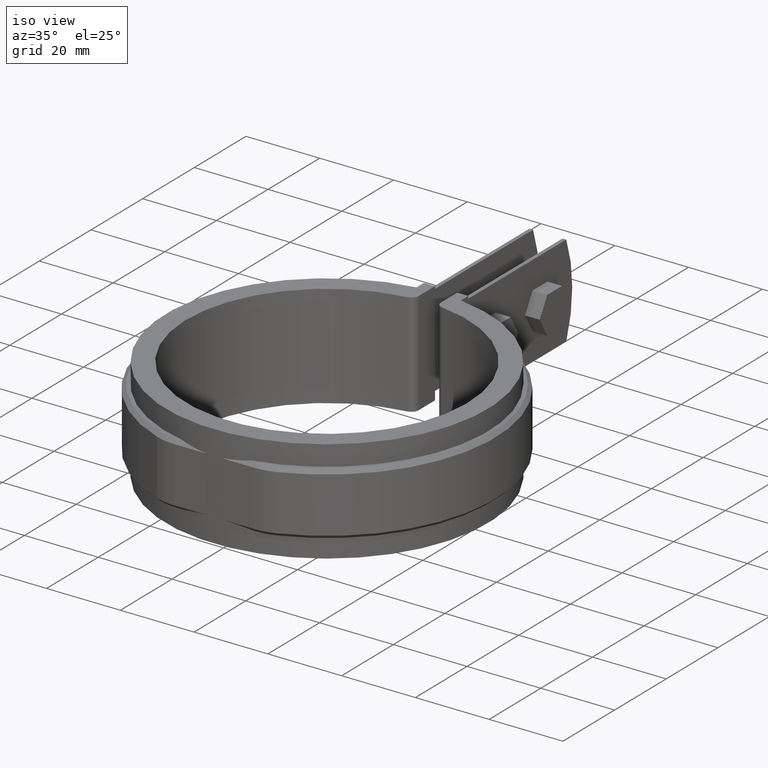
[diagram: clean part render]
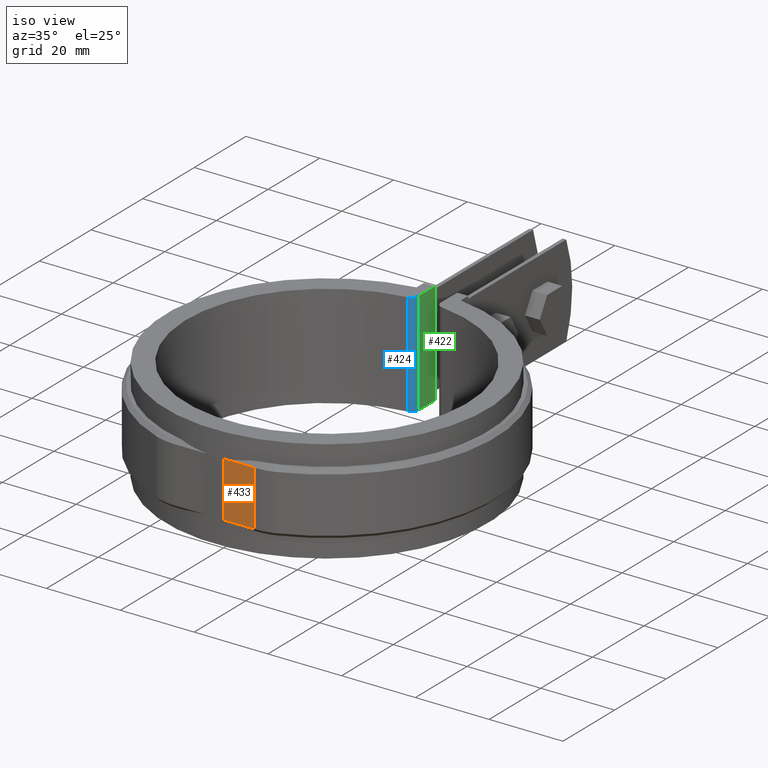
[diagram: same view with three faces highlighted in distinct colors, each labeled with its STEP entity id]
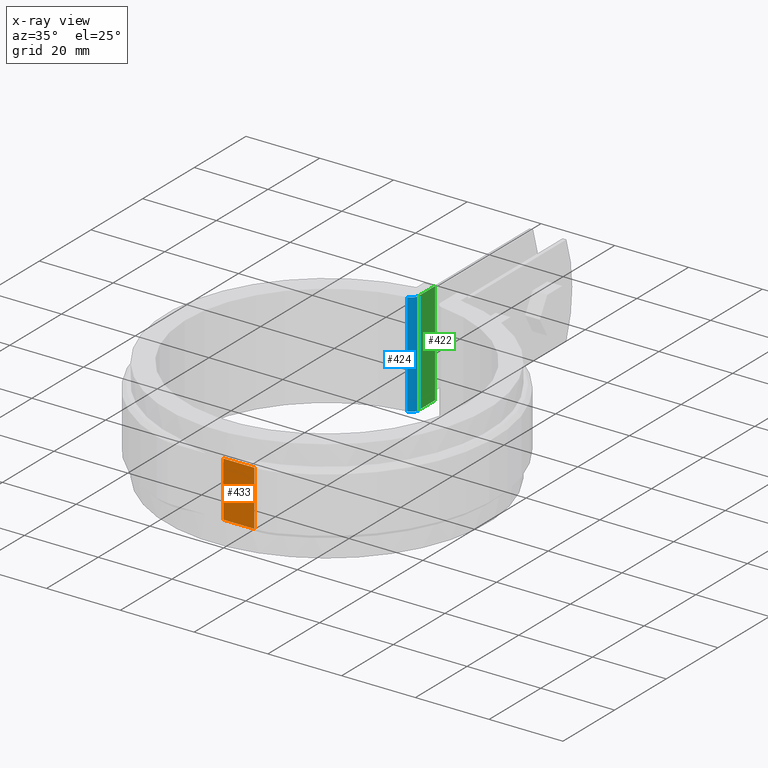
[diagram: x-ray of the same camera — body ghosted, the three highlighted faces saturated]
A machine part, iso view with three faces highlighted in distinct colors.
The next image is the same camera in x-ray (body ghosted, the three faces saturated) — at least one of them is partly hidden behind the body in this view.
Their STEP definitions:

[orange] entity #433 — the highlighted planar face has unit normal (0, 1, 0).
#433 = ADVANCED_FACE( '', ( #760 ), #761, .F. );
#760 = FACE_OUTER_BOUND( '', #1708, .T. );
#761 = PLANE( '', #1709 );
#1708 = EDGE_LOOP( '', ( #3418, #3419, #3420, #3421 ) );
#1709 = AXIS2_PLACEMENT_3D( '', #3422, #3423, #3424 );
#3418 = ORIENTED_EDGE( '', *, *, #4289, .F. );
#3419 = ORIENTED_EDGE( '', *, *, #4198, .T. );
#3420 = ORIENTED_EDGE( '', *, *, #4237, .T. );
#3421 = ORIENTED_EDGE( '', *, *, #4243, .T. );
#3422 = CARTESIAN_POINT( '', ( 10.8903627120496, -43.6500000000000, 8.50000000000000 ) );
#3423 = DIRECTION( '', ( 2.77555756156289E-017, 1.00000000000000, 0.000000000000000 ) );
#3424 = DIRECTION( '', ( 1.00000000000000, -2.77555756156289E-017, 0.000000000000000 ) );
#4198 = EDGE_CURVE( '', #4871, #4878, #4880, .T. );
#4237 = EDGE_CURVE( '', #4878, #4944, #4945, .T. );
#4243 = EDGE_CURVE( '', #4944, #4866, #4953, .T. );
#4289 = EDGE_CURVE( '', #4871, #4866, #5013, .T. );
#4866 = VERTEX_POINT( '', #7372 );
#4871 = VERTEX_POINT( '', #7378 );
#4878 = VERTEX_POINT( '', #7387 );
#4880 = LINE( '', #7390, #7391 );
#4944 = VERTEX_POINT( '', #7481 );
#4945 = LINE( '', #7482, #7483 );
#4953 = LINE( '', #7519, #7520 );
#5013 = LINE( '', #7656, #7657 );
#7372 = CARTESIAN_POINT( '', ( 10.8903627120496, -43.6500000000000, -7.50000000000000 ) );
#7378 = CARTESIAN_POINT( '', ( 10.8903627120496, -43.6500000000000, 7.50000000000000 ) );
#7387 = CARTESIAN_POINT( '', ( 2.50000000000000, -43.6500000000000, 7.49999999999999 ) );
#7390 = CARTESIAN_POINT( '', ( 2.50000000000000, -43.6500000000000, 7.50000000000000 ) );
#7391 = VECTOR( '', #8381, 1000.00000000000 );
#7481 = CARTESIAN_POINT( '', ( 2.50000000000000, -43.6500000000000, -7.50000000000000 ) );
#7482 = CARTESIAN_POINT( '', ( 2.50000000000000, -43.6500000000000, 8.50000000000000 ) );
#7483 = VECTOR( '', #8450, 1000.00000000000 );
#7519 = CARTESIAN_POINT( '', ( 10.8903627120496, -43.6500000000000, -7.50000000000000 ) );
#7520 = VECTOR( '', #8453, 1000.00000000000 );
#7656 = CARTESIAN_POINT( '', ( 10.8903627120496, -43.6500000000000, 8.50000000000000 ) );
#7657 = VECTOR( '', #8529, 1000.00000000000 );
#8381 = DIRECTION( '', ( -1.00000000000000, 2.77555756156289E-017, 0.000000000000000 ) );
#8450 = DIRECTION( '', ( 0.000000000000000, 0.000000000000000, -1.00000000000000 ) );
#8453 = DIRECTION( '', ( 1.00000000000000, -2.77555756156289E-017, 0.000000000000000 ) );
#8529 = DIRECTION( '', ( 0.000000000000000, 0.000000000000000, -1.00000000000000 ) );

[blue] entity #424 — the highlighted cylindrical surface (edge-blend (fillet) strip) has radius 2 mm, axis along (0, 0, -1).
#424 = ADVANCED_FACE( '', ( #742 ), #743, .T. );
#742 = FACE_OUTER_BOUND( '', #1690, .T. );
#743 = CYLINDRICAL_SURFACE( '', #1691, 2.00000000000000 );
#1690 = EDGE_LOOP( '', ( #3335, #3336, #3337, #3338 ) );
#1691 = AXIS2_PLACEMENT_3D( '', #3339, #3340, #3341 );
#3335 = ORIENTED_EDGE( '', *, *, #4280, .F. );
#3336 = ORIENTED_EDGE( '', *, *, #4276, .F. );
#3337 = ORIENTED_EDGE( '', *, *, #4249, .F. );
#3338 = ORIENTED_EDGE( '', *, *, #4117, .F. );
#3339 = CARTESIAN_POINT( '', ( -5.00000000000002, 39.8374509726714, -14.0000000000000 ) );
#3340 = DIRECTION( '', ( 0.000000000000000, 0.000000000000000, -1.00000000000000 ) );
#3341 = DIRECTION( '', ( 1.00000000000000, 0.000000000000000, 0.000000000000000 ) );
#4117 = EDGE_CURVE( '', #4735, #4737, #4738, .T. );
#4249 = EDGE_CURVE( '', #4737, #4960, #4961, .F. );
#4276 = EDGE_CURVE( '', #4960, #4998, #4999, .F. );
#4280 = EDGE_CURVE( '', #4998, #4735, #5004, .T. );
#4735 = VERTEX_POINT( '', #6685 );
#4737 = VERTEX_POINT( '', #6687 );
#4738 = LINE( '', #6688, #6689 );
#4960 = VERTEX_POINT( '', #7530 );
#4961 = CIRCLE( '', #7531, 2.00000000000000 );
#4998 = VERTEX_POINT( '', #7633 );
#4999 = LINE( '', #7634, #7635 );
#5004 = CIRCLE( '', #7643, 2.00000000000000 );
#6685 = CARTESIAN_POINT( '', ( -4.75093399750936, 37.8530200400352, -14.0000000000000 ) );
#6687 = CARTESIAN_POINT( '', ( -4.75093399750936, 37.8530200400352, 14.0000000000000 ) );
#6688 = CARTESIAN_POINT( '', ( -4.75093399750936, 37.8530200400352, -14.0000000000000 ) );
#6689 = VECTOR( '', #8298, 1000.00000000000 );
#7530 = CARTESIAN_POINT( '', ( -3.00000000000002, 39.8374509726714, 14.0000000000000 ) );
#7531 = AXIS2_PLACEMENT_3D( '', #8463, #8464, #8465 );
#7633 = CARTESIAN_POINT( '', ( -3.00000000000002, 39.8374509726714, -14.0000000000000 ) );
#7634 = CARTESIAN_POINT( '', ( -3.00000000000002, 39.8374509726714, -14.0000000000000 ) );
#7635 = VECTOR( '', #8506, 1000.00000000000 );
#7643 = AXIS2_PLACEMENT_3D( '', #8510, #8511, #8512 );
#8298 = DIRECTION( '', ( 0.000000000000000, 0.000000000000000, 1.00000000000000 ) );
#8463 = CARTESIAN_POINT( '', ( -5.00000000000002, 39.8374509726714, 14.0000000000000 ) );
#8464 = DIRECTION( '', ( 0.000000000000000, 0.000000000000000, -1.00000000000000 ) );
#8465 = DIRECTION( '', ( -1.00000000000000, 0.000000000000000, 0.000000000000000 ) );
#8506 = DIRECTION( '', ( 0.000000000000000, 0.000000000000000, 1.00000000000000 ) );
#8510 = CARTESIAN_POINT( '', ( -5.00000000000002, 39.8374509726714, -14.0000000000000 ) );
#8511 = DIRECTION( '', ( 0.000000000000000, 0.000000000000000, -1.00000000000000 ) );
#8512 = DIRECTION( '', ( -1.00000000000000, 0.000000000000000, 0.000000000000000 ) );

[green] entity #422 — the highlighted planar face has unit normal (1, -0, 0).
#422 = ADVANCED_FACE( '', ( #738 ), #739, .T. );
#738 = FACE_OUTER_BOUND( '', #1686, .T. );
#739 = PLANE( '', #1687 );
#1686 = EDGE_LOOP( '', ( #3321, #3322, #3323, #3324 ) );
#1687 = AXIS2_PLACEMENT_3D( '', #3325, #3326, #3327 );
#3321 = ORIENTED_EDGE( '', *, *, #4250, .F. );
#3322 = ORIENTED_EDGE( '', *, *, #4276, .T. );
#3323 = ORIENTED_EDGE( '', *, *, #4277, .T. );
#3324 = ORIENTED_EDGE( '', *, *, #4094, .T. );
#3325 = CARTESIAN_POINT( '', ( -3.00000000000002, 38.0318616425754, -14.0000000000000 ) );
#3326 = DIRECTION( '', ( 1.00000000000000, -6.07153216591882E-017, 0.000000000000000 ) );
#3327 = DIRECTION( '', ( -6.07153216591882E-017, -1.00000000000000, 0.000000000000000 ) );
#4094 = EDGE_CURVE( '', #4695, #4693, #4696, .T. );
#4250 = EDGE_CURVE( '', #4960, #4693, #4962, .T. );
#4276 = EDGE_CURVE( '', #4960, #4998, #4999, .F. );
#4277 = EDGE_CURVE( '', #4998, #4695, #5000, .T. );
#4693 = VERTEX_POINT( '', #6596 );
#4695 = VERTEX_POINT( '', #6599 );
#4696 = LINE( '', #6600, #6601 );
#4960 = VERTEX_POINT( '', #7530 );
#4962 = LINE( '', #7532, #7533 );
#4998 = VERTEX_POINT( '', #7633 );
#4999 = LINE( '', #7634, #7635 );
#5000 = LINE( '', #7636, #7637 );
#6596 = CARTESIAN_POINT( '', ( -3.00000000000002, 46.1500000000000, 14.0000000000000 ) );
#6599 = CARTESIAN_POINT( '', ( -3.00000000000002, 46.1500000000000, -14.0000000000000 ) );
#6600 = CARTESIAN_POINT( '', ( -3.00000000000002, 46.1500000000000, -14.0000000000000 ) );
#6601 = VECTOR( '', #8268, 1000.00000000000 );
#7530 = CARTESIAN_POINT( '', ( -3.00000000000002, 39.8374509726714, 14.0000000000000 ) );
#7532 = CARTESIAN_POINT( '', ( -3.00000000000002, 38.0318616425754, 14.0000000000000 ) );
#7533 = VECTOR( '', #8466, 1000.00000000000 );
#7633 = CARTESIAN_POINT( '', ( -3.00000000000002, 39.8374509726714, -14.0000000000000 ) );
#7634 = CARTESIAN_POINT( '', ( -3.00000000000002, 39.8374509726714, -14.0000000000000 ) );
#7635 = VECTOR( '', #8506, 1000.00000000000 );
#7636 = CARTESIAN_POINT( '', ( -3.00000000000002, 38.0318616425754, -14.0000000000000 ) );
#7637 = VECTOR( '', #8507, 1000.00000000000 );
#8268 = DIRECTION( '', ( 0.000000000000000, 0.000000000000000, 1.00000000000000 ) );
#8466 = DIRECTION( '', ( 6.07153216591882E-017, 1.00000000000000, 0.000000000000000 ) );
#8506 = DIRECTION( '', ( 0.000000000000000, 0.000000000000000, 1.00000000000000 ) );
#8507 = DIRECTION( '', ( 6.07153216591882E-017, 1.00000000000000, 0.000000000000000 ) );